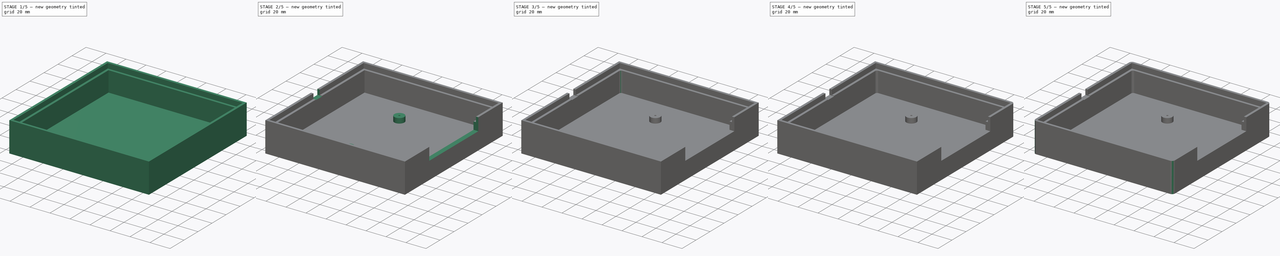
[diagram: build sequence overview — one tinted view per stage of 5, left to right]
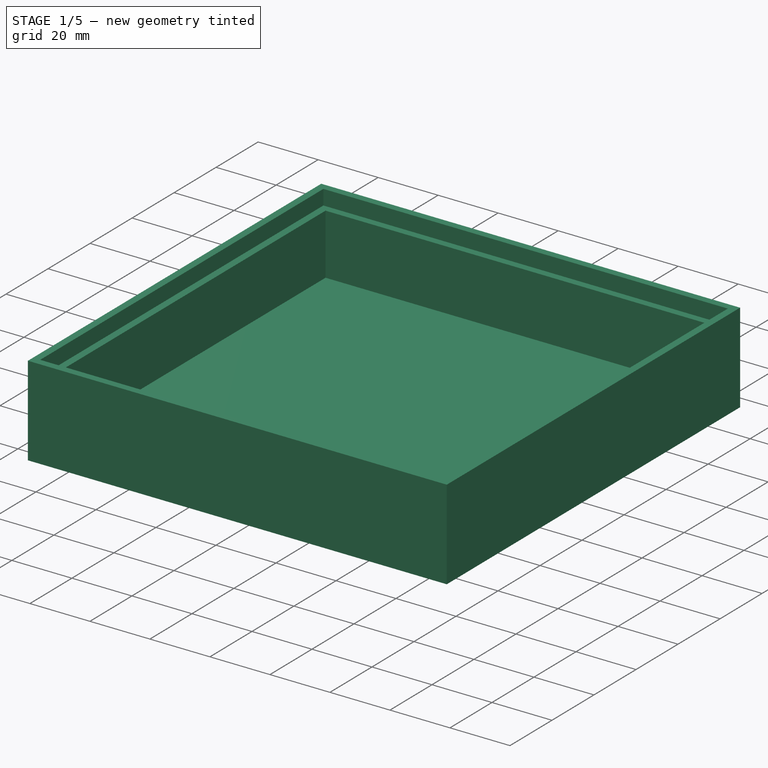
[diagram: stage 1 of 5 — iso view after this stage's code; geometry added in this stage tinted green]
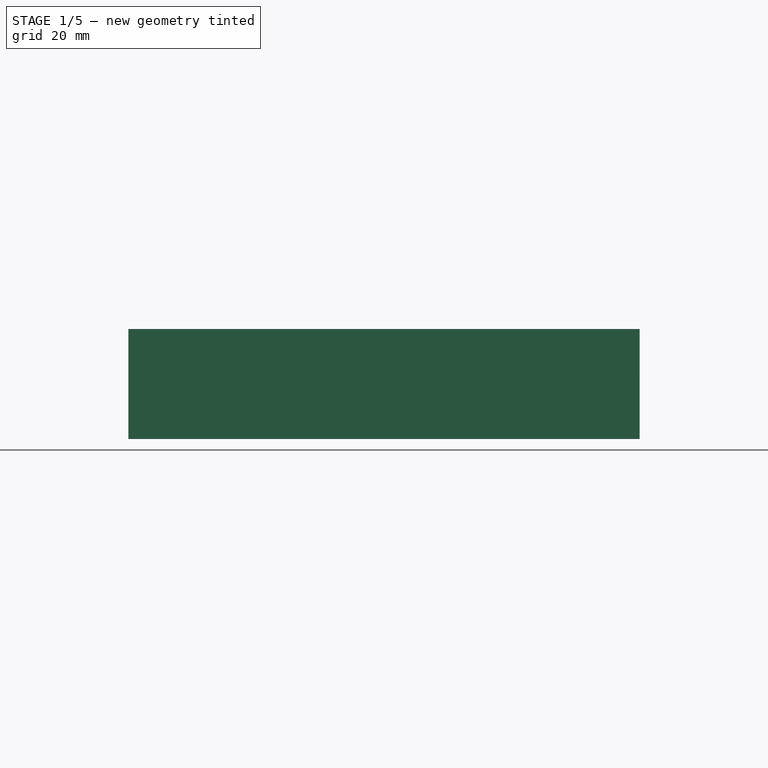
[diagram: stage 1 of 5 — front view after this stage's code; geometry added in this stage tinted green]
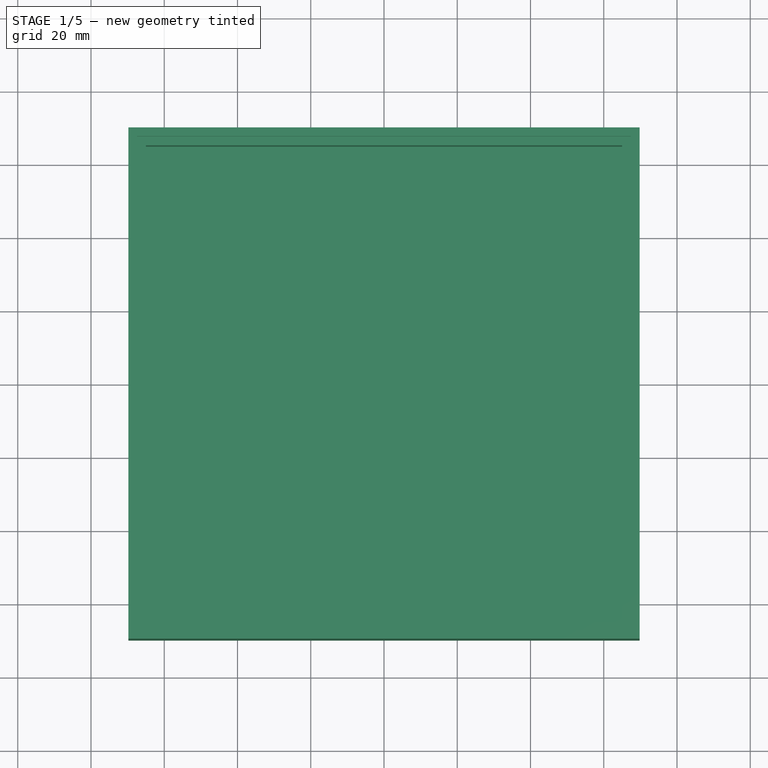
[diagram: stage 1 of 5 — top view after this stage's code; geometry added in this stage tinted green]
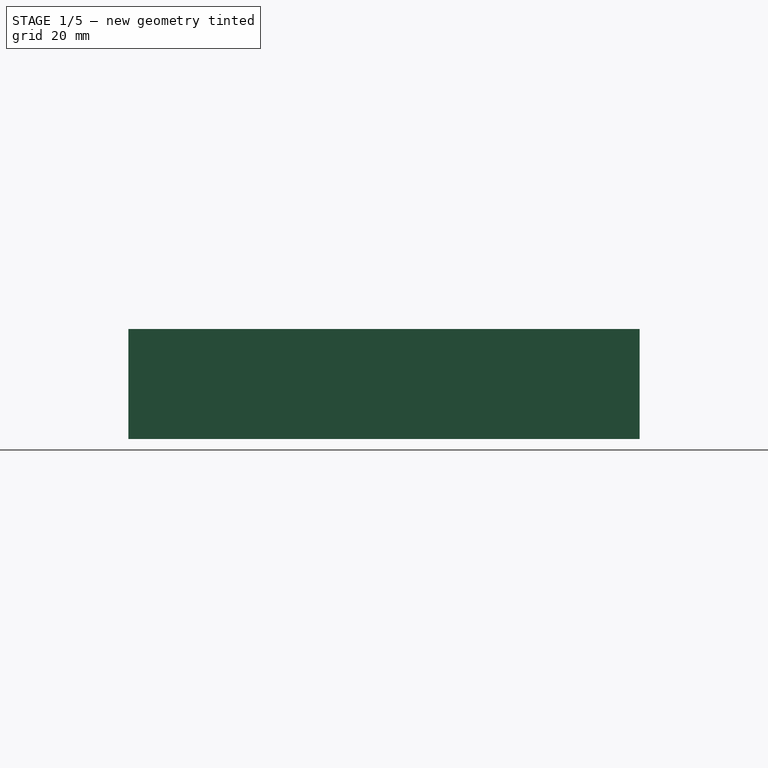
[diagram: stage 1 of 5 — right view after this stage's code; geometry added in this stage tinted green]
FCSTD DOCUMENT  (FreeCAD 0.18.3R)
Label: clock_base1
License: All rights reserved
LicenseURL: http://en.wikipedia.org/wiki/All_rights_reserved
objects: PartDesign::Fillet×11, Sketcher::SketchObject×8, PartDesign::Pocket×4, PartDesign::Pad×2, Spreadsheet::Sheet×1, PartDesign::Body×1
note: 32 computed .brp shape members not serialized (recipe doc carries the construction recipe); baked Part::Feature solids carry a one-line shape summary decoded from their .brp

FEATURE [Spreadsheet::Sheet] Spreadsheet
  cells = A1=nozzle size; B1(nozzle_size)==0.4mm; A2=wall thickness; B2(wall_thickness)==nozzle_size * 12; A4=clock width; B4(clock_width)==1200mm; A5=clock length; B5(clock_length)==1200mm; A7=offset from board; B7(offset_from_board)==5mm; A9=post height; B9(post_height)==5mm; A11=total case height; B11(total_case_height)==60mm
FEATURE [Sketcher::SketchObject] Sketch  label="bottom_clock"
  MapMode = 5
  Support = -> [XY_Plane]
  sketch-geometry (4):
    g0: LineSegment StartX=-60 StartY=60 StartZ=0 EndX=60 EndY=60 EndZ=0
    g1: LineSegment StartX=60 StartY=60 StartZ=0 EndX=60 EndY=-60 EndZ=0
    g2: LineSegment StartX=60 StartY=-60 StartZ=0 EndX=-60 EndY=-60 EndZ=0
    g3: LineSegment StartX=-60 StartY=-60 StartZ=0 EndX=-60 EndY=60 EndZ=0
  constraints (10):
    c: Coincident(g0,g1)
    c: Coincident(g1,g2)
    c: Coincident(g2,g3)
    c: Coincident(g3,g0)
    c: Horizontal(g2)
    c: Vertical(g1)
    c: DistanceX(g0,g0) = 120
    c: Symmetric(g0,g0,g-2)
    c: Symmetric(g2,g0,g-1)
    c: DistanceY(g1,g1) = 120
FEATURE [Sketcher::SketchObject] Sketch001  label="outer_pad"
  ExternalGeometry = -> [Sketch]
  MapMode = 5
  Support = -> [XY_Plane]
  expr: Constraints[7] = Spreadsheet.wall_thickness + Spreadsheet.offset_from_board
  expr: Constraints[6] = Spreadsheet.wall_thickness + Spreadsheet.offset_from_board
  sketch-geometry (4):
    g0: LineSegment StartX=-69.8 StartY=69.8 StartZ=0 EndX=69.8 EndY=69.8 EndZ=0
    g1: LineSegment StartX=69.8 StartY=69.8 StartZ=0 EndX=69.8 EndY=-69.8 EndZ=0
    g2: LineSegment StartX=69.8 StartY=-69.8 StartZ=0 EndX=-69.8 EndY=-69.8 EndZ=0
    g3: LineSegment StartX=-69.8 StartY=-69.8 StartZ=0 EndX=-69.8 EndY=69.8 EndZ=0
  constraints (10):
    c: Coincident(g0,g1)
    c: Coincident(g1,g2)
    c: Coincident(g2,g3)
    c: Coincident(g3,g0)
    c: Horizontal(g2)
    c: Vertical(g1)
    c: DistanceX(g0,g-3) = 9.8
    c: DistanceY(g-3,g0) = 9.8
    c: Symmetric(g0,g0,g-2)
    c: Symmetric(g0,g2,g-1)
FEATURE [PartDesign::Pad] Pad
  Length = 30
  Length2 = 100
  Profile = -> Sketch001
  Type = 0
FEATURE [Sketcher::SketchObject] Sketch002  label="inner_pocket"
  ExternalGeometry = -> [Sketch]
  MapMode = 5
  Placement = pos=(0,0,30) rot=(0,0,1;0rad)
  Support = -> [Pad]
  expr: Constraints[7] = Spreadsheet.offset_from_board
  sketch-geometry (4):
    g0: LineSegment StartX=-65 StartY=65 StartZ=0 EndX=65 EndY=65 EndZ=0
    g1: LineSegment StartX=65 StartY=65 StartZ=0 EndX=65 EndY=-65 EndZ=0
    g2: LineSegment StartX=65 StartY=-65 StartZ=0 EndX=-65 EndY=-65 EndZ=0
    g3: LineSegment StartX=-65 StartY=-65 StartZ=0 EndX=-65 EndY=65 EndZ=0
  constraints (10):
    c: Coincident(g0,g1)
    c: Coincident(g1,g2)
    c: Coincident(g2,g3)
    c: Coincident(g3,g0)
    c: Horizontal(g2)
    c: Vertical(g1)
    c: DistanceX(g0,g-3) = 5
    c: DistanceY(g-3,g0) = 5
    c: Symmetric(g0,g0,g-2)
    c: Symmetric(g0,g2,g-1)
FEATURE [PartDesign::Pocket] Pocket
  BaseFeature = -> Pad
  Length = 25.2
  Length2 = 100
  Profile = -> Sketch002
  Type = 0
  expr: Length = Pad.Length - Spreadsheet.wall_thickness
FEATURE [Sketcher::SketchObject] Sketch003  label="lid_lip"
  ExternalGeometry = -> [Sketch]
  MapMode = 5
  Placement = pos=(0,0,30) rot=(0,0,1;0rad)
  Support = -> [Pocket]
  expr: Constraints[5] = Spreadsheet.wall_thickness / 2 + Spreadsheet.offset_from_board
  expr: Constraints[4] = Spreadsheet.wall_thickness / 2 + Spreadsheet.offset_from_board
  sketch-geometry (4):
    g0: LineSegment StartX=-67.4 StartY=67.4 StartZ=0 EndX=67.4 EndY=67.4 EndZ=0
    g1: LineSegment StartX=67.4 StartY=67.4 StartZ=0 EndX=67.4 EndY=-67.4 EndZ=0
    g2: LineSegment StartX=67.4 StartY=-67.4 StartZ=0 EndX=-67.4 EndY=-67.4 EndZ=0
    g3: LineSegment StartX=-67.4 StartY=-67.4 StartZ=0 EndX=-67.4 EndY=67.4 EndZ=0
  constraints (10):
    c: Coincident(g0,g1)
    c: Coincident(g1,g2)
    c: Coincident(g2,g3)
    c: Coincident(g3,g0)
    c: DistanceX(g0,g-3) = 7.4
    c: DistanceY(g-3,g0) = 7.4
    c: Symmetric(g0,g0,g-2)
    c: Symmetric(g0,g2,g-1)
    c: Vertical(g1)
    c: Horizontal(g2)
FEATURE [PartDesign::Pocket] Pocket001
  BaseFeature = -> Pocket
  Length = 5
  Length2 = 100
  Profile = -> Sketch003
  Type = 0
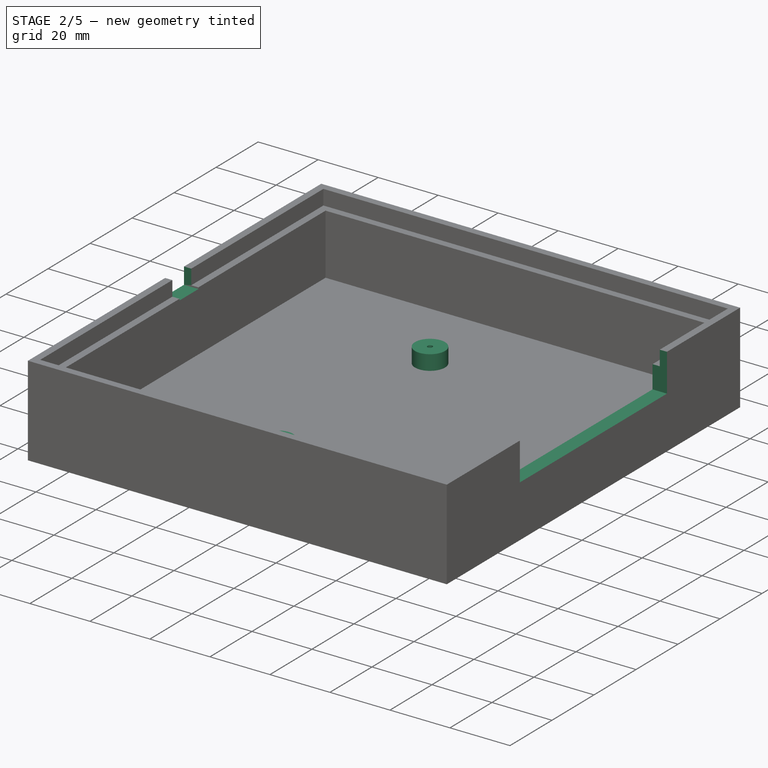
[diagram: stage 2 of 5 — iso view after this stage's code; geometry added in this stage tinted green]
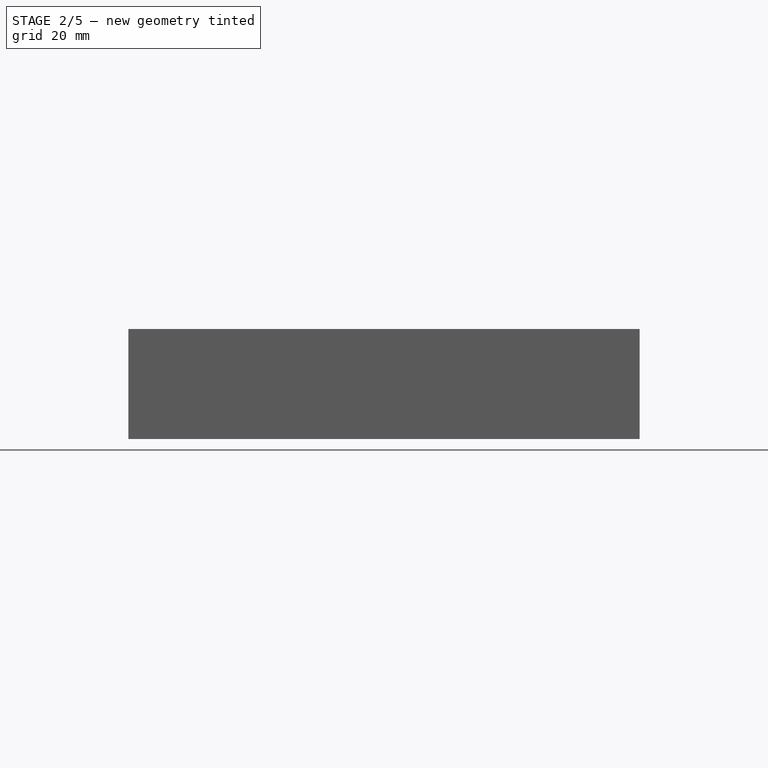
[diagram: stage 2 of 5 — front view after this stage's code; geometry added in this stage tinted green]
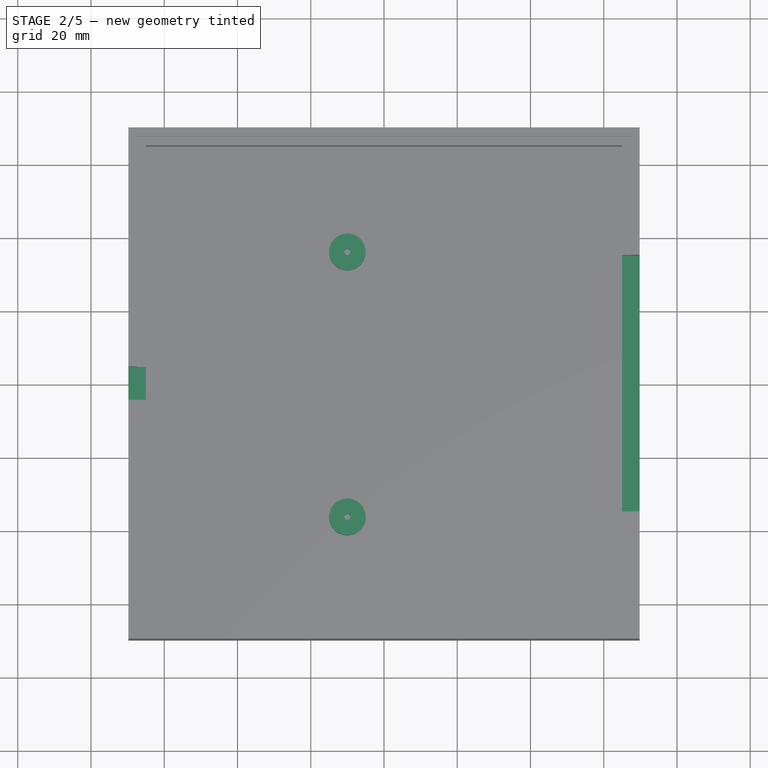
[diagram: stage 2 of 5 — top view after this stage's code; geometry added in this stage tinted green]
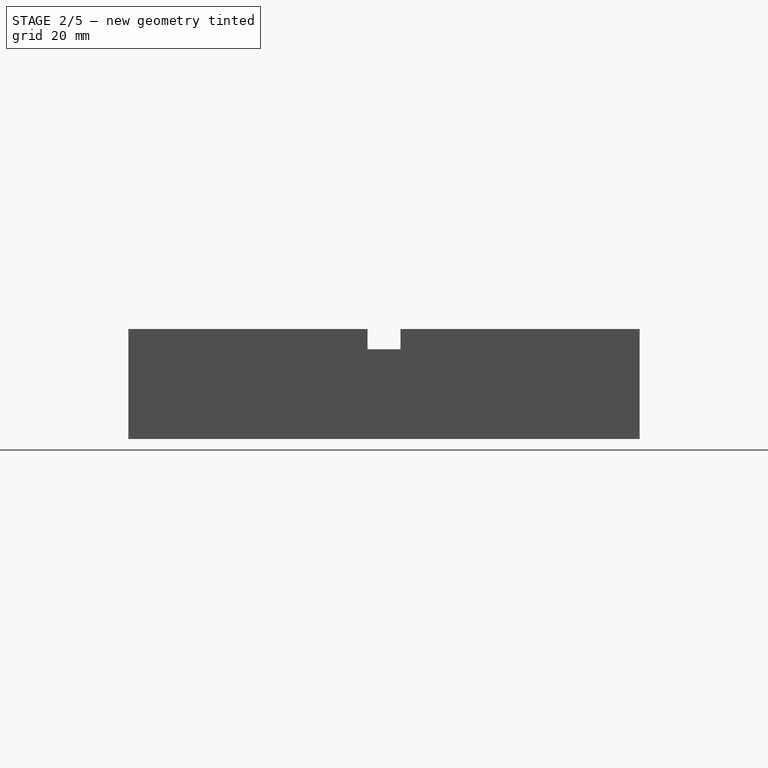
[diagram: stage 2 of 5 — right view after this stage's code; geometry added in this stage tinted green]
FEATURE [Sketcher::SketchObject] Sketch004  label="posts"
  ExternalGeometry = -> [Sketch]
  MapMode = 5
  Placement = pos=(0,0,4.8) rot=(0,0,1;0rad)
  Support = -> [Pocket001]
  sketch-geometry (4):
    g0: Circle CenterX=-10 CenterY=36.18 CenterZ=0 NormalX=0 NormalY=0 NormalZ=1 AngleXU=0 Radius=0.8255
    g1: Circle CenterX=-10 CenterY=36.18 CenterZ=0 NormalX=0 NormalY=0 NormalZ=1 AngleXU=0 Radius=5
    g2: Circle CenterX=-10 CenterY=-36.18 CenterZ=0 NormalX=0 NormalY=0 NormalZ=1 AngleXU=0 Radius=0.8255
    g3: Circle CenterX=-10 CenterY=-36.18 CenterZ=0 NormalX=0 NormalY=0 NormalZ=1 AngleXU=0 Radius=5
  constraints (9):
    c: Radius(g0) = 0.8255
    c: Equal(g0,g2)
    c: Radius(g1) = 5
    c: Equal(g1,g3)
    c: DistanceY(g2,g0) = 72.36
    c: Coincident(g2,g3)
    c: Coincident(g0,g1)
    c: Symmetric(g2,g0,g-1)
    c: DistanceX(g-3,g2) = 50
FEATURE [PartDesign::Pad] Pad001
  BaseFeature = -> Pocket001
  Length = 5
  Length2 = 100
  Profile = -> Sketch004
  Type = 0
  expr: Length = Spreadsheet.post_height
FEATURE [Sketcher::SketchObject] Sketch005  label="LCD_bottom"
  ExternalGeometry = -> [Pad001]
  MapMode = 5
  Placement = pos=(69.8,0,0) rot=(0.57735,0.57735,0.57735;2.0944rad)
  Support = -> [Pad001]
  sketch-geometry (4):
    g0: LineSegment StartX=-35 StartY=30 StartZ=0 EndX=35 EndY=30 EndZ=0
    g1: LineSegment StartX=35 StartY=30 StartZ=0 EndX=35 EndY=17.4 EndZ=0
    g2: LineSegment StartX=35 StartY=17.4 StartZ=0 EndX=-35 EndY=17.4 EndZ=0
    g3: LineSegment StartX=-35 StartY=17.4 StartZ=0 EndX=-35 EndY=30 EndZ=0
  constraints (12):
    c: Coincident(g0,g1)
    c: Coincident(g1,g2)
    c: Coincident(g2,g3)
    c: Coincident(g3,g0)
    c: Horizontal(g0)
    c: Horizontal(g2)
    c: Vertical(g1)
    c: Vertical(g3)
    c: DistanceY(g1,g1) = 12.6
    c: DistanceX(g0,g0) = 70
    c: DistanceY(g0,g-3) = 0
    c: DistanceX(g2,g-1) = 35
FEATURE [Sketcher::SketchObject] CopySketch005  label="lcd_screen"
  Placement = pos=(69.8,0,0) rot=(0.57735,0.57735,0.57735;2.0944rad)
  sketch-geometry (4):
    g0: LineSegment StartX=-35 StartY=30 StartZ=0 EndX=35 EndY=30 EndZ=0
    g1: LineSegment StartX=35 StartY=30 StartZ=0 EndX=35 EndY=17.4 EndZ=0
    g2: LineSegment StartX=35 StartY=17.4 StartZ=0 EndX=-35 EndY=17.4 EndZ=0
    g3: LineSegment StartX=-35 StartY=17.4 StartZ=0 EndX=-35 EndY=30 EndZ=0
  constraints (12):
    c: Coincident(g0,g1)
    c: Coincident(g1,g2)
    c: Coincident(g2,g3)
    c: Coincident(g3,g0)
    c: Horizontal(g0)
    c: Horizontal(g2)
    c: Vertical(g1)
    c: Vertical(g3)
    c: DistanceY(g1,g1) = 12.6
    c: DistanceX(g0,g0) = 70
    c: DistanceX(g2,g-1) = 35
    c: DistanceY(g-1,g1) = 17.4
FEATURE [PartDesign::Pocket] Pocket002
  BaseFeature = -> Pad001
  Length = 5
  Length2 = 100
  Profile = -> CopySketch005
  Type = 0
FEATURE [Sketcher::SketchObject] Sketch006  label="power_supply"
  ExternalGeometry = -> [Pocket002]
  MapMode = 5
  Placement = pos=(-69.8,0,0) rot=(0.57735,-0.57735,-0.57735;2.0944rad)
  Support = -> [Pocket002]
  sketch-geometry (4):
    g0: LineSegment StartX=-4.5 StartY=30 StartZ=0 EndX=4.5 EndY=30 EndZ=0
    g1: LineSegment StartX=4.5 StartY=30 StartZ=0 EndX=4.5 EndY=24.5 EndZ=0
    g2: LineSegment StartX=4.5 StartY=24.5 StartZ=0 EndX=-4.5 EndY=24.5 EndZ=0
    g3: LineSegment StartX=-4.5 StartY=24.5 StartZ=0 EndX=-4.5 EndY=30 EndZ=0
  constraints (12):
    c: Coincident(g0,g1)
    c: Coincident(g1,g2)
    c: Coincident(g2,g3)
    c: Coincident(g3,g0)
    c: Horizontal(g0)
    c: Horizontal(g2)
    c: Vertical(g1)
    c: Vertical(g3)
    c: DistanceX(g0,g0) = 9
    c: DistanceY(g1,g1) = 5.5
    c: DistanceY(g0,g-3) = 0
    c: DistanceX(g-1,g1) = 4.5
FEATURE [PartDesign::Pocket] Pocket003
  BaseFeature = -> Pocket002
  Length = 5
  Length2 = 100
  Profile = -> Sketch006
  Type = 0
FEATURE [PartDesign::Fillet] Fillet
  Base = -> Pocket003 [Edge68]
  BaseFeature = -> Pocket003
  Radius = 2
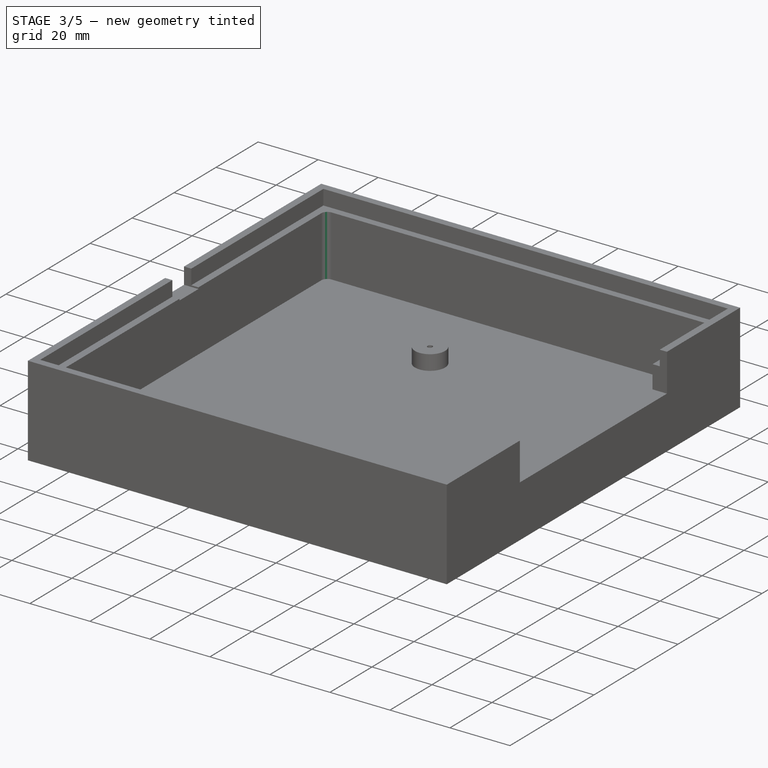
[diagram: stage 3 of 5 — iso view after this stage's code; geometry added in this stage tinted green]
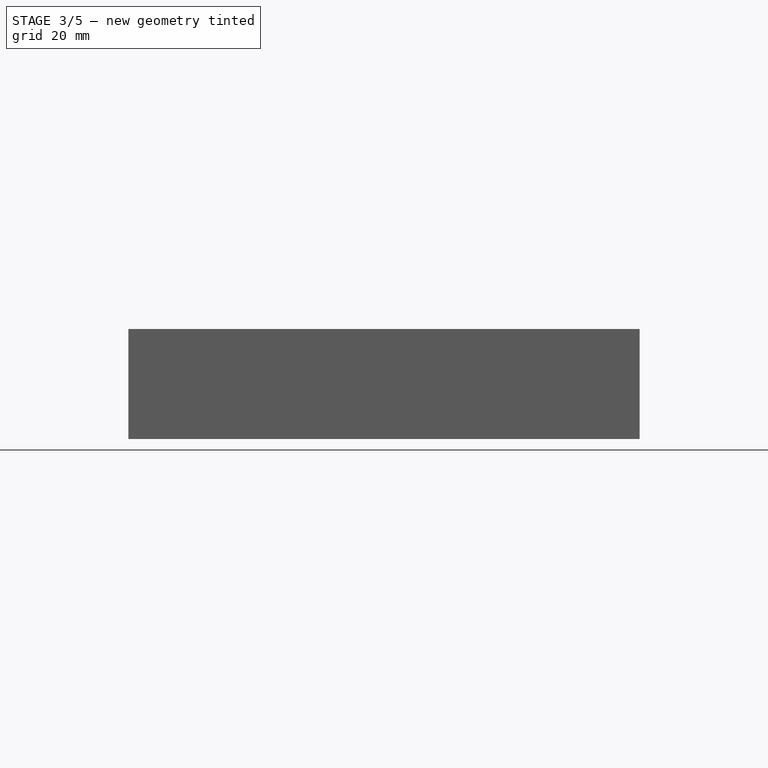
[diagram: stage 3 of 5 — front view after this stage's code; geometry added in this stage tinted green]
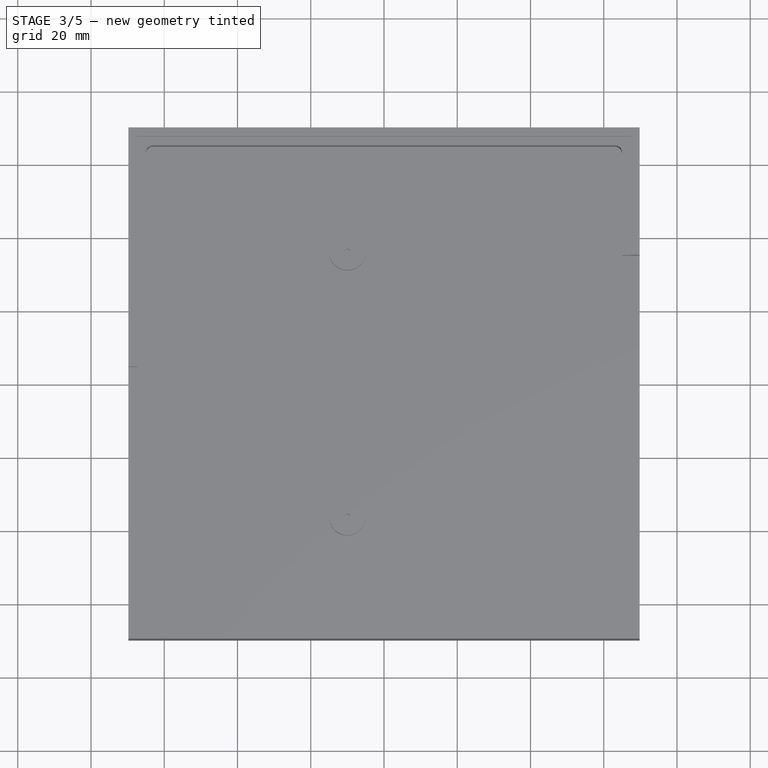
[diagram: stage 3 of 5 — top view after this stage's code; geometry added in this stage tinted green]
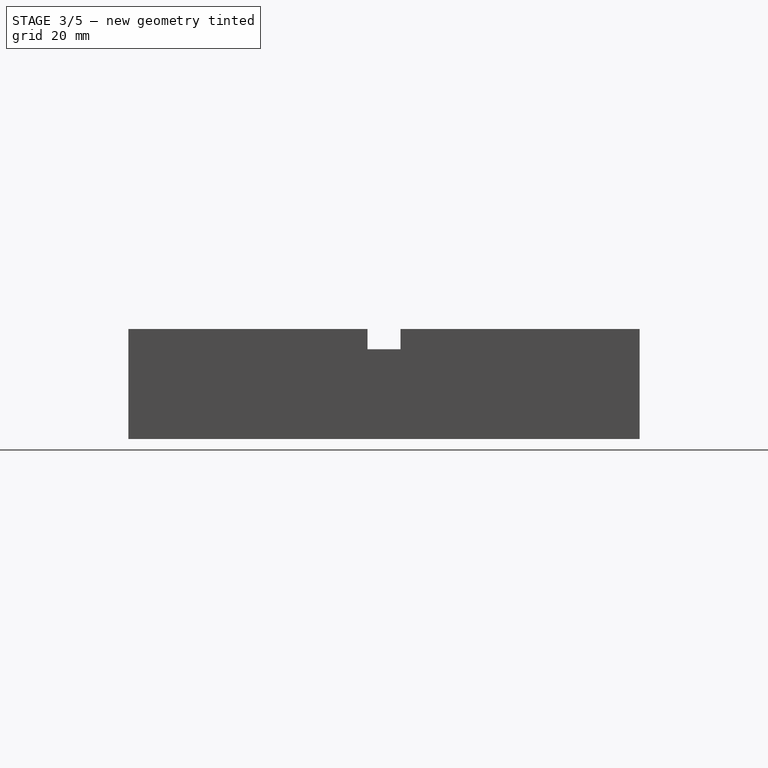
[diagram: stage 3 of 5 — right view after this stage's code; geometry added in this stage tinted green]
FEATURE [PartDesign::Fillet] Fillet001
  Base = -> Fillet [Edge14]
  BaseFeature = -> Fillet
  Radius = 2
FEATURE [PartDesign::Fillet] Fillet002
  Base = -> Fillet001 [Edge43]
  BaseFeature = -> Fillet001
  Radius = 2
FEATURE [PartDesign::Fillet] Fillet003
  Base = -> Fillet002 [Edge20]
  BaseFeature = -> Fillet002
  Radius = 2
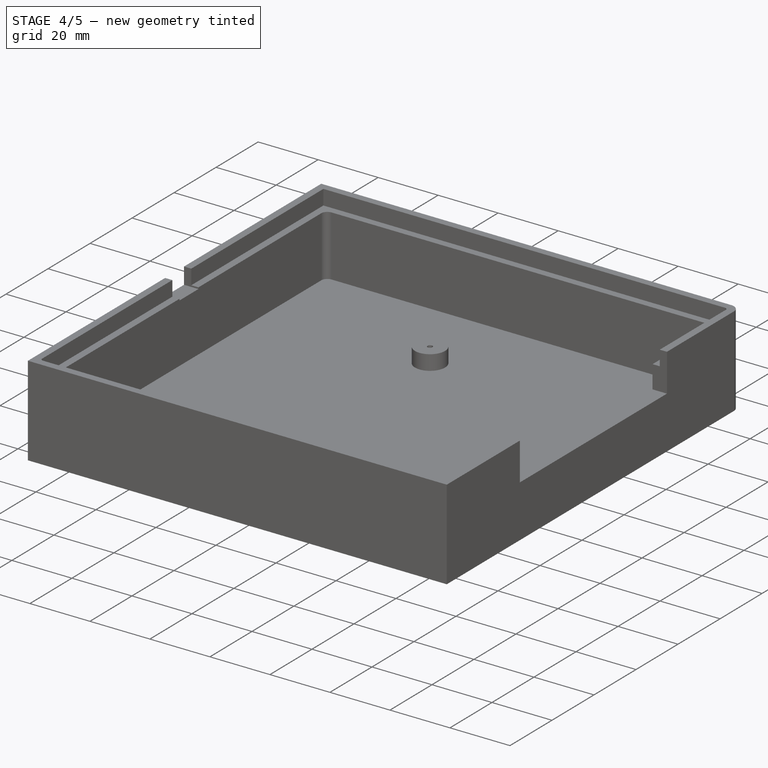
[diagram: stage 4 of 5 — iso view after this stage's code; geometry added in this stage tinted green]
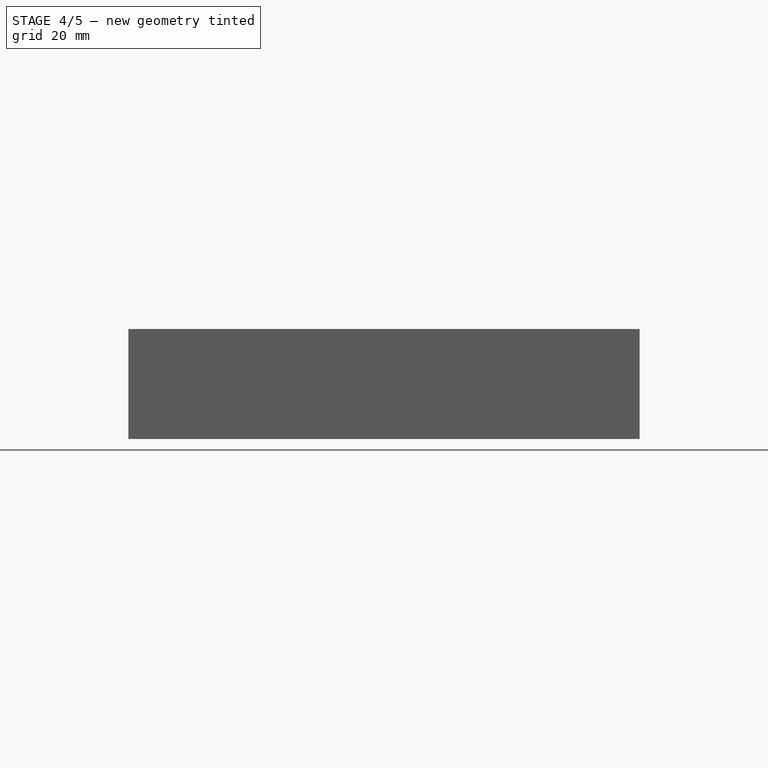
[diagram: stage 4 of 5 — front view after this stage's code; geometry added in this stage tinted green]
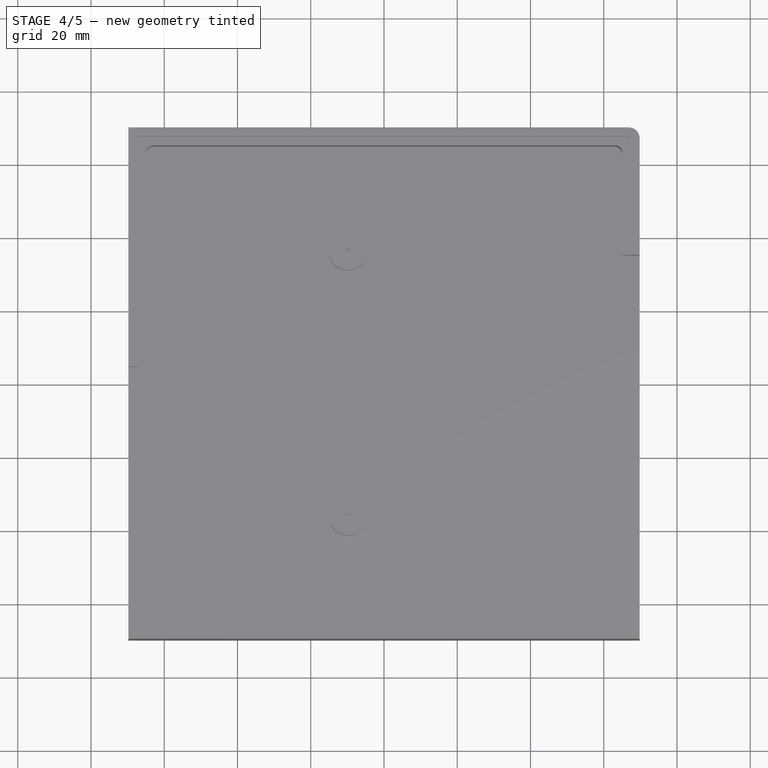
[diagram: stage 4 of 5 — top view after this stage's code; geometry added in this stage tinted green]
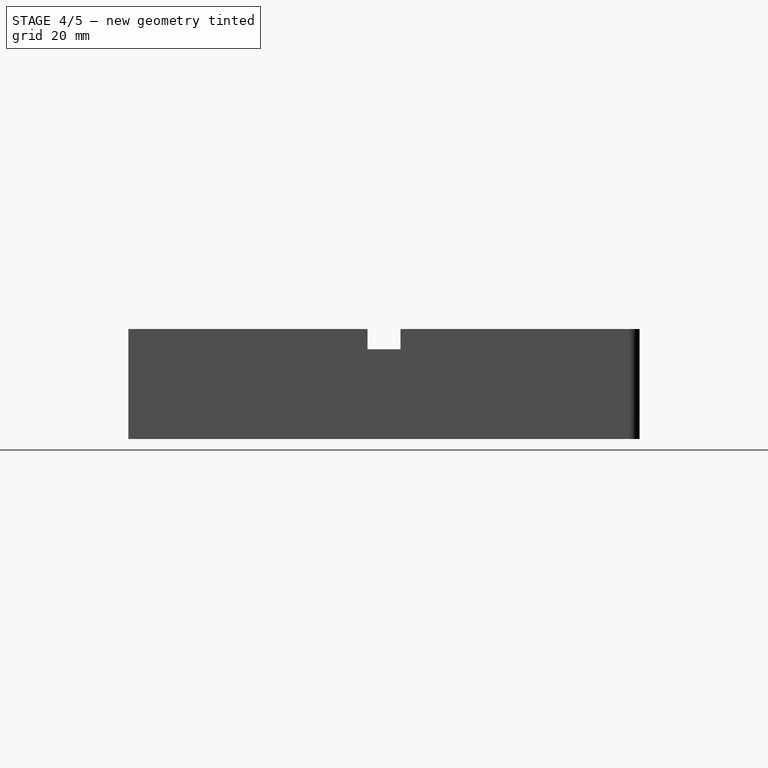
[diagram: stage 4 of 5 — right view after this stage's code; geometry added in this stage tinted green]
FEATURE [PartDesign::Fillet] Fillet004
  Base = -> Fillet003 [Edge70]
  BaseFeature = -> Fillet003
  Radius = 1
FEATURE [PartDesign::Fillet] Fillet005
  Base = -> Fillet004 [Edge22]
  BaseFeature = -> Fillet004
  Radius = 1
FEATURE [PartDesign::Fillet] Fillet006
  Base = -> Fillet005 [Edge96]
  BaseFeature = -> Fillet005
  Radius = 1
FEATURE [PartDesign::Fillet] Fillet007
  Base = -> Fillet006 [Edge54]
  BaseFeature = -> Fillet006
  Radius = 3
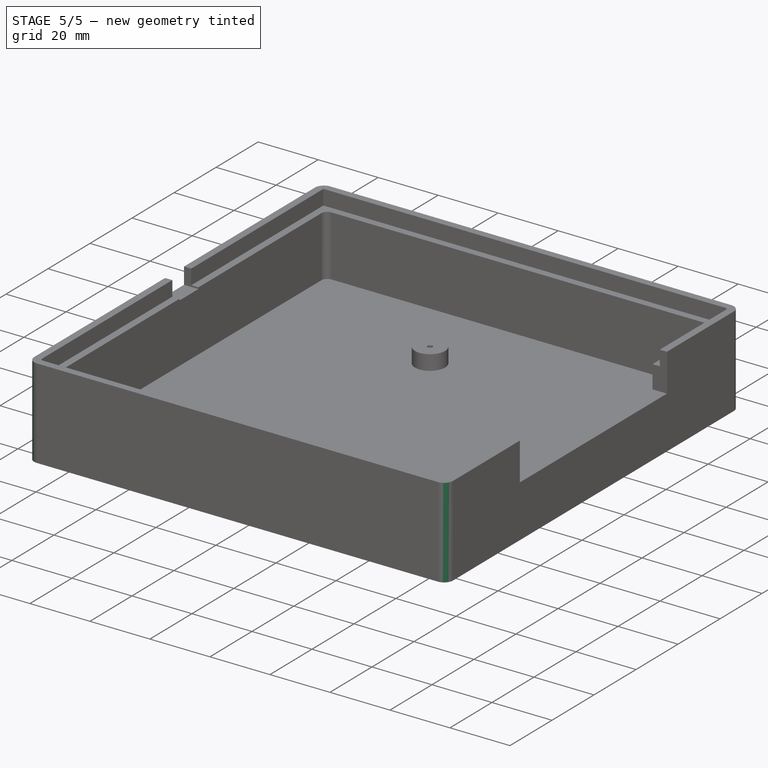
[diagram: stage 5 of 5 — iso view after this stage's code; geometry added in this stage tinted green]
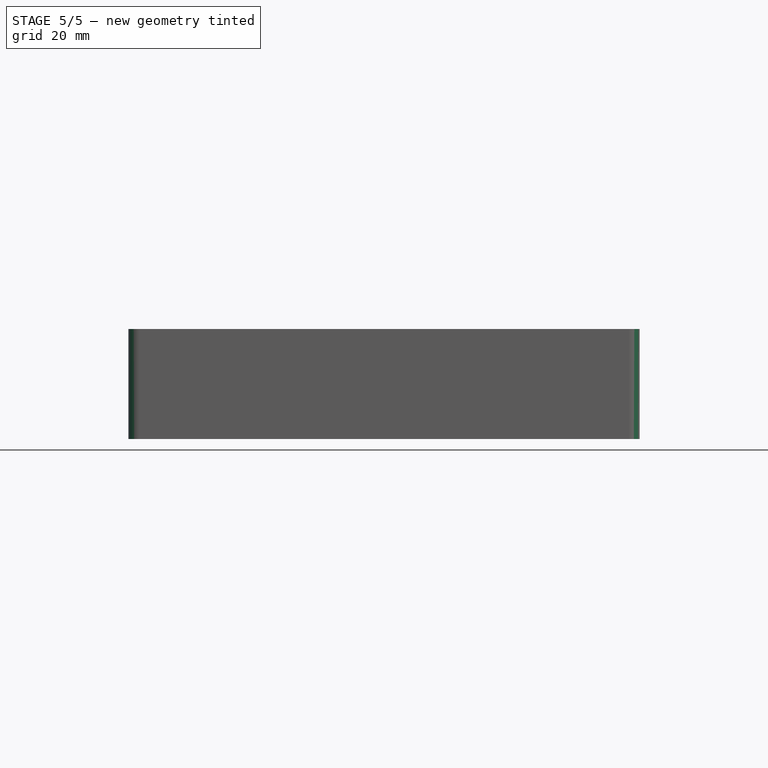
[diagram: stage 5 of 5 — front view after this stage's code; geometry added in this stage tinted green]
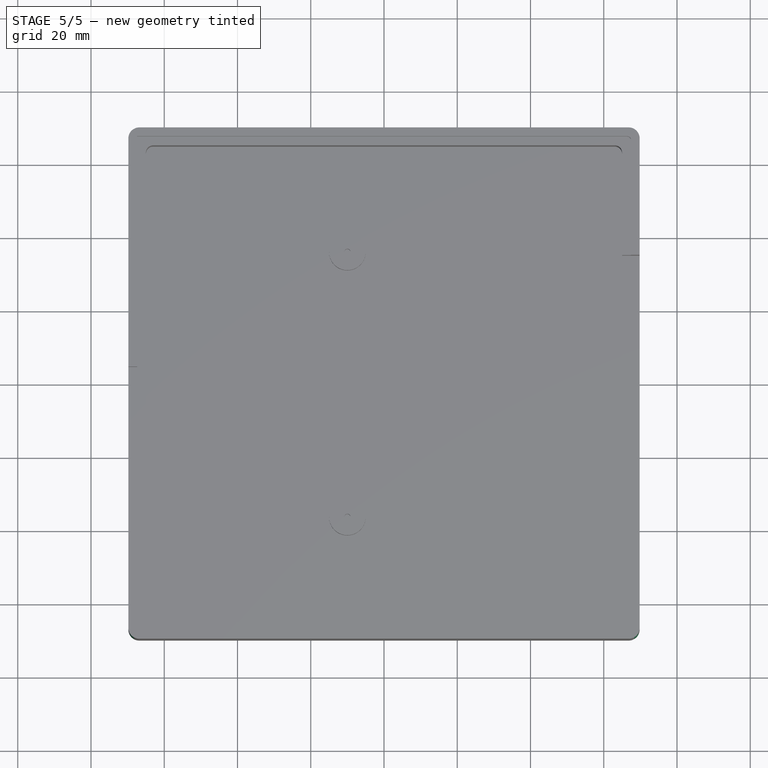
[diagram: stage 5 of 5 — top view after this stage's code; geometry added in this stage tinted green]
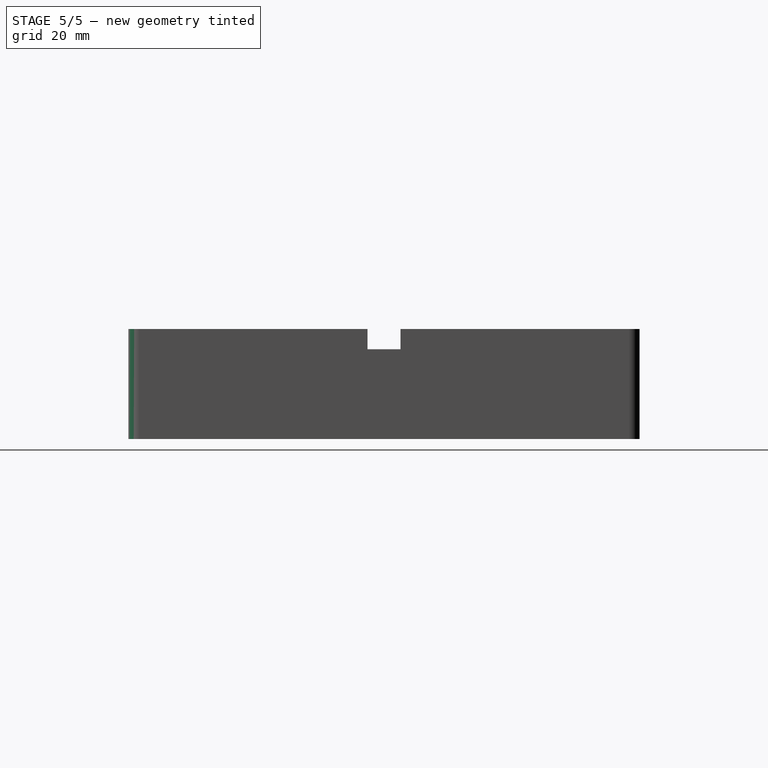
[diagram: stage 5 of 5 — right view after this stage's code; geometry added in this stage tinted green]
FEATURE [PartDesign::Fillet] Fillet008
  Base = -> Fillet007 [Edge25]
  BaseFeature = -> Fillet007
  Radius = 3
FEATURE [PartDesign::Fillet] Fillet009
  Base = -> Fillet008 [Edge20]
  BaseFeature = -> Fillet008
  Radius = 3
FEATURE [PartDesign::Fillet] Fillet010
  Base = -> Fillet009 [Edge46]
  BaseFeature = -> Fillet009
  Radius = 3
FEATURE [PartDesign::Body] Body
  Group = -> [Sketch,Sketch001,Pad,Sketch002,Pocket,Sketch003,Pocket001,Sketch004,Pad001,Pocket002,Sketch006,Pocket003,Fillet,Fillet001,Fillet002,Fillet003,Fillet004,Fillet005,Fillet006,Fillet007,Fillet008,Fillet009,Fillet010]
  Origin = -> Origin
  Tip = -> Fillet010
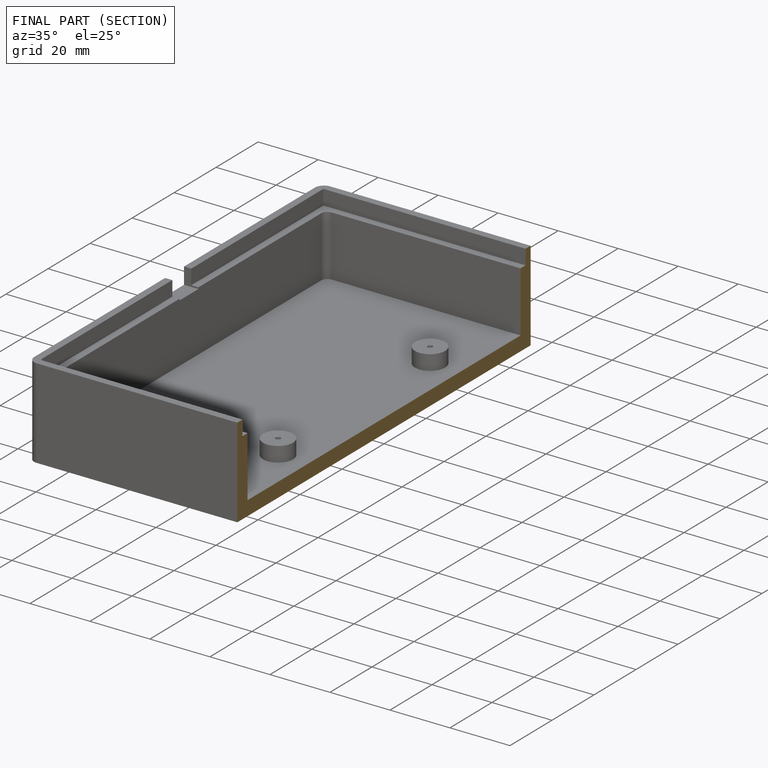
[diagram: finished part — half-section view (interior)]
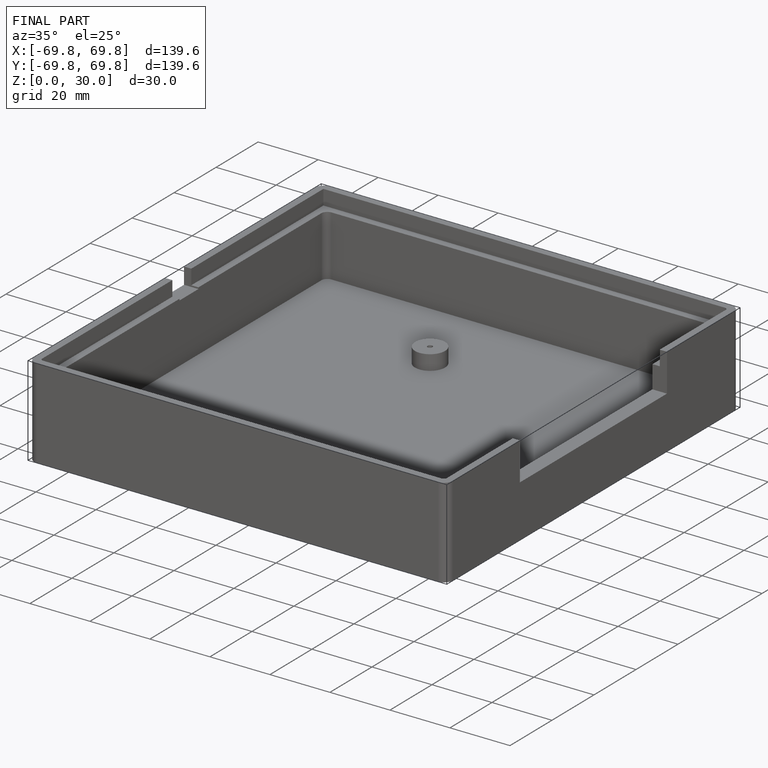
[diagram: finished part — iso view with bounding-box wireframe]
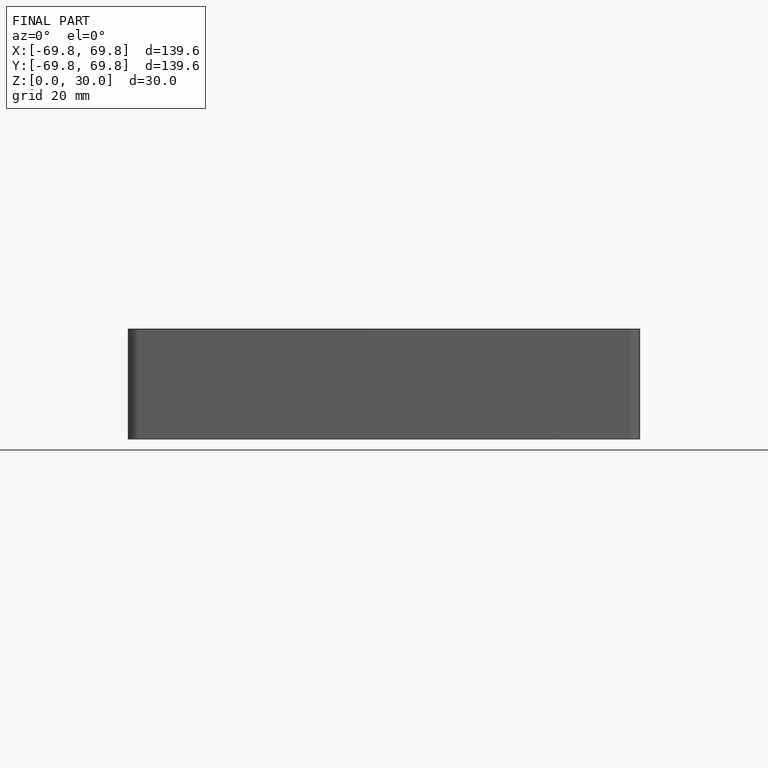
[diagram: finished part — front view with bounding-box wireframe]
